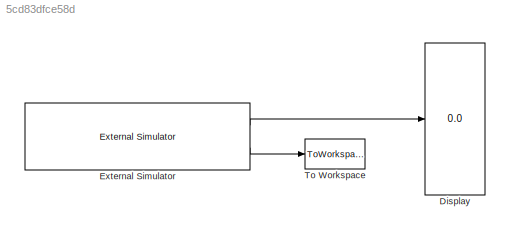
MODEL slx_5cd83dfce58d
KIND model
CONFIG AbsTol = auto
CONFIG FixedStep = 1
CONFIG MaxStep = auto
CONFIG MinStep = auto
CONFIG RelTol = 1e-3
CONFIG SampleTimeConstraint = Unconstrained
CONFIG Solver = ode3
CONFIG SolverMode = Auto
CONFIG SolverName = ode3
CONFIG StartTime = 0.0
CONFIG StopTime = 10.0
BLOCK [Display] Display
  Decimation = 1
  Ports = [1]
BLOCK [Reference] External Simulator  REF=libSimulators/External Simulator
  Condition = %20151211%
  N = 20
  Ports = [0, 2]
  SourceBlock = libSimulators/External Simulator
  SourceType = slexVarSizeMATLABSystemGetDBIDsSysObj
  db_name = HeatingUnits
  db_password = unb.sql.2015
  db_username = sw_ETS
BLOCK [ToWorkspace] To Workspace
  FixptAsFi = on
  MaxDataPoints = inf
  Ports = [1]
  SampleTime = -1
  Save2DSignal = 3-D array (concatenate along third dimension)
  SaveFormat = Structure With Time
  VariableName = IDs
LINE External Simulator:1 -> Display:1
LINE External Simulator:2 -> To Workspace:1
